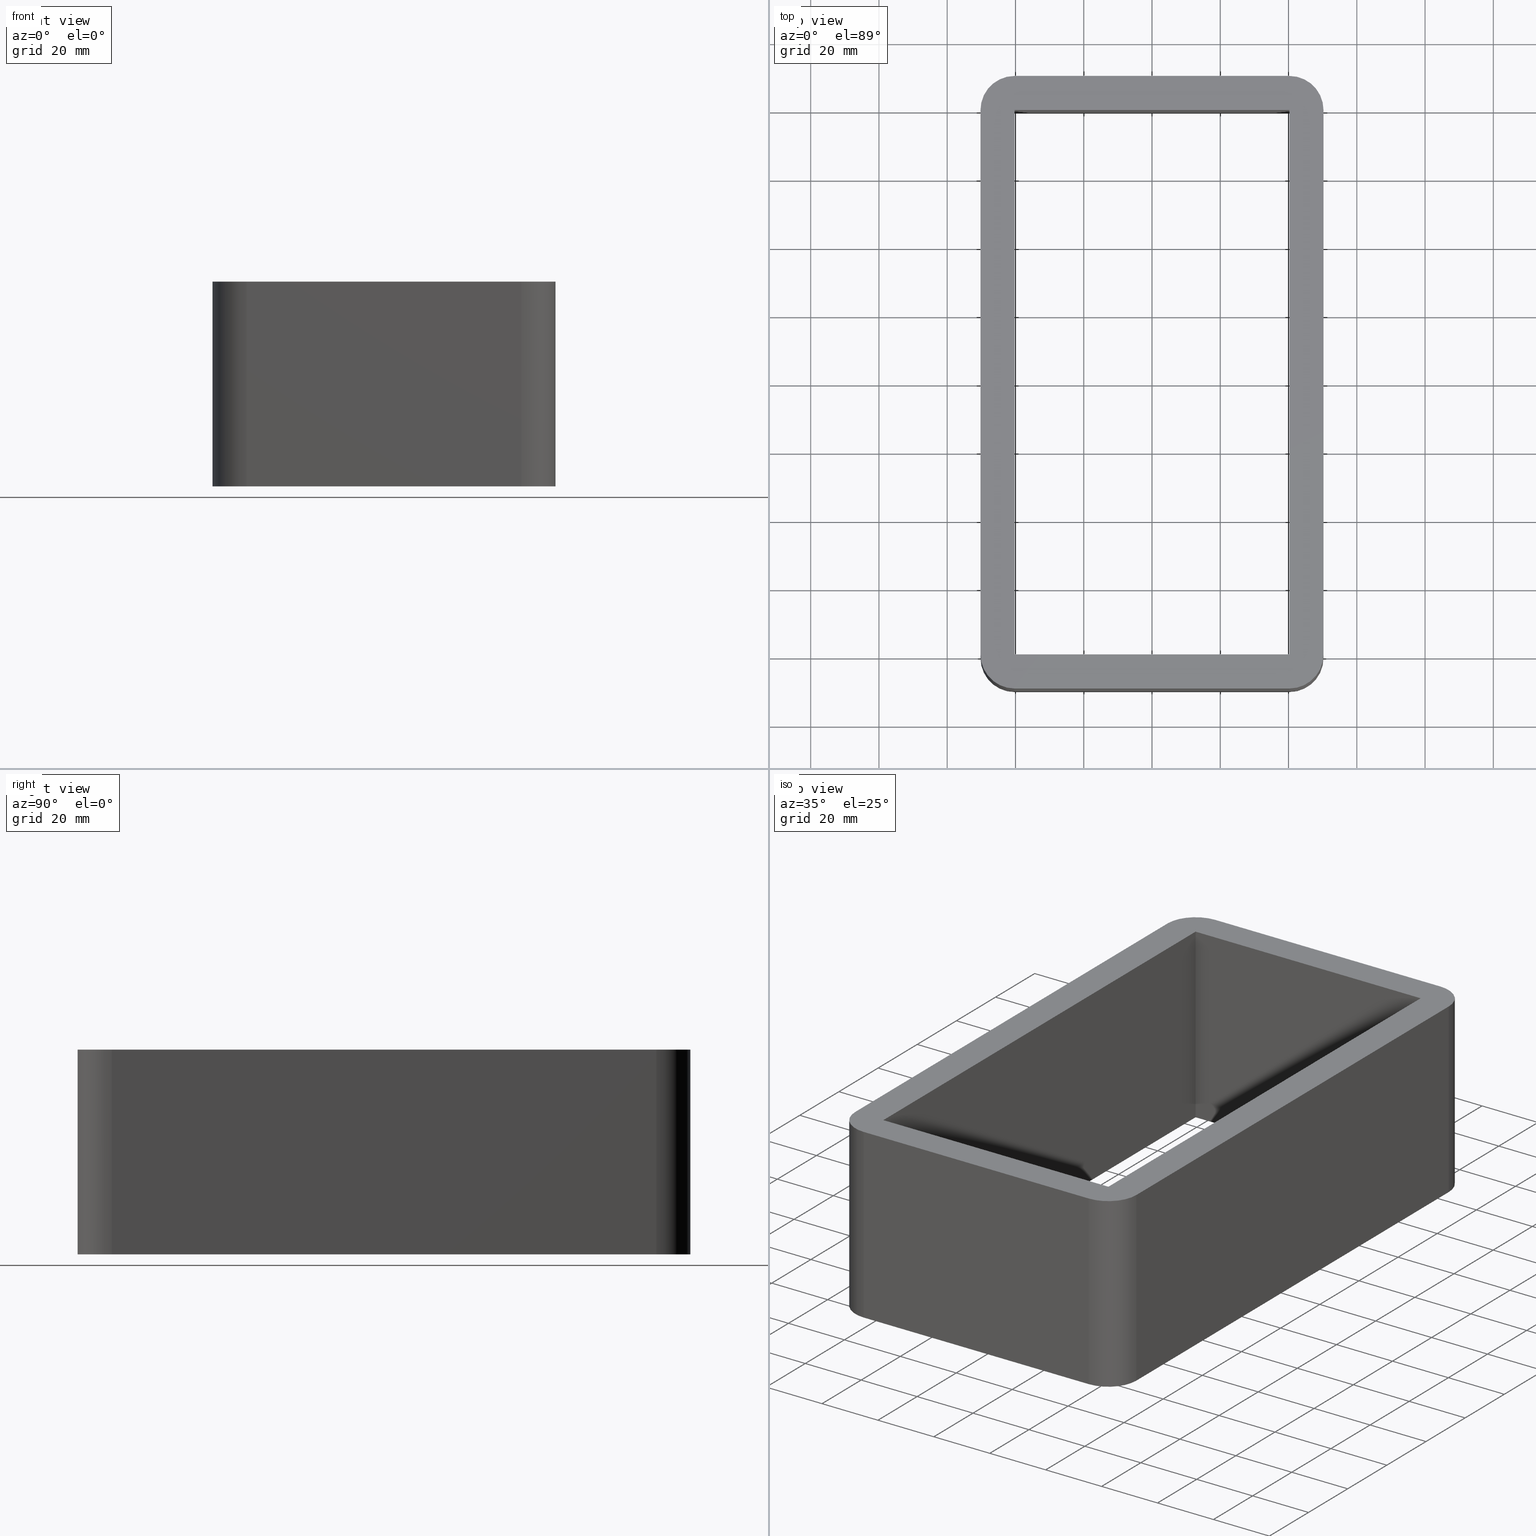
[diagram: canonical four-view strip — front | top / right | iso, engineering-drawing reading convention]
A machine part, canonical four-view strip (front | top / right | iso — engineering-drawing reading convention). The complete STEP part file that produces these views, byte-faithful:
ISO-10303-21;
HEADER;
/* Generated by software containing ST-Developer
 * from STEP Tools, Inc. (www.steptools.com) 
 */

FILE_DESCRIPTION(
/* description */ (''),
/* implementation_level */ '2;1');

FILE_NAME(
/* name */ 
'C:\\Users\\se-milkar\\OneDrive - Roxtec international AB\\Desktop\\S 
80\\Step\\S804X1.stp',
/* time_stamp */ '2024-09-03T15:05:58+02:00',
/* author */ ('ENTER YOUR USERNAME'),
/* organization */ (''),
/* preprocessor_version */ 'ST-DEVELOPER v18.1',
/* originating_system */ 'Autodesk Inventor 2021',
/* authorisation */ '');

FILE_SCHEMA (('AUTOMOTIVE_DESIGN { 1 0 10303 214 3 1 1 }'));
ENDSEC;

DATA;
#10=MECHANICAL_DESIGN_GEOMETRIC_PRESENTATION_REPRESENTATION('',(#13),#465);
#11=SHAPE_REPRESENTATION_RELATIONSHIP('SRR','None',#472,#12);
#12=ADVANCED_BREP_SHAPE_REPRESENTATION('',(#14),#464);
#13=STYLED_ITEM('',(#481),#14);
#14=MANIFOLD_SOLID_BREP('Solid1',#271);
#15=FACE_BOUND('',#50,.T.);
#16=FACE_BOUND('',#58,.T.);
#17=CIRCLE('',#296,10.);
#18=CIRCLE('',#297,10.);
#19=CIRCLE('',#300,10.);
#20=CIRCLE('',#301,10.);
#21=CIRCLE('',#302,10.);
#22=CIRCLE('',#304,10.);
#23=CIRCLE('',#307,10.);
#24=CIRCLE('',#310,10.);
#25=CYLINDRICAL_SURFACE('',#295,10.);
#26=CYLINDRICAL_SURFACE('',#303,10.);
#27=CYLINDRICAL_SURFACE('',#306,10.);
#28=CYLINDRICAL_SURFACE('',#309,10.);
#29=FACE_OUTER_BOUND('',#43,.T.);
#30=FACE_OUTER_BOUND('',#44,.T.);
#31=FACE_OUTER_BOUND('',#45,.T.);
#32=FACE_OUTER_BOUND('',#46,.T.);
#33=FACE_OUTER_BOUND('',#47,.T.);
#34=FACE_OUTER_BOUND('',#48,.T.);
#35=FACE_OUTER_BOUND('',#49,.T.);
#36=FACE_OUTER_BOUND('',#51,.T.);
#37=FACE_OUTER_BOUND('',#52,.T.);
#38=FACE_OUTER_BOUND('',#53,.T.);
#39=FACE_OUTER_BOUND('',#54,.T.);
#40=FACE_OUTER_BOUND('',#55,.T.);
#41=FACE_OUTER_BOUND('',#56,.T.);
#42=FACE_OUTER_BOUND('',#57,.T.);
#43=EDGE_LOOP('',(#175,#176,#177,#178));
#44=EDGE_LOOP('',(#179,#180,#181,#182));
#45=EDGE_LOOP('',(#183,#184,#185,#186));
#46=EDGE_LOOP('',(#187,#188,#189,#190));
#47=EDGE_LOOP('',(#191,#192,#193,#194));
#48=EDGE_LOOP('',(#195,#196,#197,#198));
#49=EDGE_LOOP('',(#199,#200,#201,#202,#203,#204,#205,#206));
#50=EDGE_LOOP('',(#207,#208,#209,#210));
#51=EDGE_LOOP('',(#211,#212,#213,#214));
#52=EDGE_LOOP('',(#215,#216,#217,#218));
#53=EDGE_LOOP('',(#219,#220,#221,#222));
#54=EDGE_LOOP('',(#223,#224,#225,#226));
#55=EDGE_LOOP('',(#227,#228,#229,#230));
#56=EDGE_LOOP('',(#231,#232,#233,#234));
#57=EDGE_LOOP('',(#235,#236,#237,#238,#239,#240,#241,#242));
#58=EDGE_LOOP('',(#243,#244,#245,#246));
#59=LINE('',#391,#87);
#60=LINE('',#393,#88);
#61=LINE('',#395,#89);
#62=LINE('',#396,#90);
#63=LINE('',#399,#91);
#64=LINE('',#401,#92);
#65=LINE('',#402,#93);
#66=LINE('',#405,#94);
#67=LINE('',#407,#95);
#68=LINE('',#408,#96);
#69=LINE('',#410,#97);
#70=LINE('',#411,#98);
#71=LINE('',#417,#99);
#72=LINE('',#420,#100);
#73=LINE('',#423,#101);
#74=LINE('',#425,#102);
#75=LINE('',#426,#103);
#76=LINE('',#429,#104);
#77=LINE('',#433,#105);
#78=LINE('',#437,#106);
#79=LINE('',#441,#107);
#80=LINE('',#445,#108);
#81=LINE('',#446,#109);
#82=LINE('',#449,#110);
#83=LINE('',#453,#111);
#84=LINE('',#454,#112);
#85=LINE('',#457,#113);
#86=LINE('',#460,#114);
#87=VECTOR('',#317,10.);
#88=VECTOR('',#318,10.);
#89=VECTOR('',#319,10.);
#90=VECTOR('',#320,10.);
#91=VECTOR('',#323,10.);
#92=VECTOR('',#324,10.);
#93=VECTOR('',#325,10.);
#94=VECTOR('',#328,10.);
#95=VECTOR('',#329,10.);
#96=VECTOR('',#330,10.);
#97=VECTOR('',#333,10.);
#98=VECTOR('',#334,10.);
#99=VECTOR('',#339,10.);
#100=VECTOR('',#342,10.);
#101=VECTOR('',#345,10.);
#102=VECTOR('',#346,10.);
#103=VECTOR('',#347,10.);
#104=VECTOR('',#350,10.);
#105=VECTOR('',#353,10.);
#106=VECTOR('',#356,10.);
#107=VECTOR('',#361,10.);
#108=VECTOR('',#366,10.);
#109=VECTOR('',#367,10.);
#110=VECTOR('',#370,10.);
#111=VECTOR('',#375,10.);
#112=VECTOR('',#376,10.);
#113=VECTOR('',#379,10.);
#114=VECTOR('',#384,10.);
#115=VERTEX_POINT('',#389);
#116=VERTEX_POINT('',#390);
#117=VERTEX_POINT('',#392);
#118=VERTEX_POINT('',#394);
#119=VERTEX_POINT('',#398);
#120=VERTEX_POINT('',#400);
#121=VERTEX_POINT('',#404);
#122=VERTEX_POINT('',#406);
#123=VERTEX_POINT('',#413);
#124=VERTEX_POINT('',#414);
#125=VERTEX_POINT('',#416);
#126=VERTEX_POINT('',#418);
#127=VERTEX_POINT('',#422);
#128=VERTEX_POINT('',#424);
#129=VERTEX_POINT('',#428);
#130=VERTEX_POINT('',#430);
#131=VERTEX_POINT('',#432);
#132=VERTEX_POINT('',#434);
#133=VERTEX_POINT('',#436);
#134=VERTEX_POINT('',#440);
#135=VERTEX_POINT('',#444);
#136=VERTEX_POINT('',#448);
#137=VERTEX_POINT('',#452);
#138=VERTEX_POINT('',#456);
#139=EDGE_CURVE('',#115,#116,#59,.T.);
#140=EDGE_CURVE('',#117,#115,#60,.T.);
#141=EDGE_CURVE('',#118,#117,#61,.T.);
#142=EDGE_CURVE('',#118,#116,#62,.T.);
#143=EDGE_CURVE('',#116,#119,#63,.T.);
#144=EDGE_CURVE('',#120,#118,#64,.T.);
#145=EDGE_CURVE('',#120,#119,#65,.T.);
#146=EDGE_CURVE('',#119,#121,#66,.T.);
#147=EDGE_CURVE('',#122,#120,#67,.T.);
#148=EDGE_CURVE('',#122,#121,#68,.T.);
#149=EDGE_CURVE('',#121,#115,#69,.T.);
#150=EDGE_CURVE('',#117,#122,#70,.T.);
#151=EDGE_CURVE('',#123,#124,#17,.T.);
#152=EDGE_CURVE('',#124,#125,#71,.T.);
#153=EDGE_CURVE('',#125,#126,#18,.T.);
#154=EDGE_CURVE('',#126,#123,#72,.T.);
#155=EDGE_CURVE('',#127,#124,#73,.T.);
#156=EDGE_CURVE('',#128,#127,#74,.T.);
#157=EDGE_CURVE('',#125,#128,#75,.T.);
#158=EDGE_CURVE('',#123,#129,#76,.T.);
#159=EDGE_CURVE('',#130,#129,#19,.T.);
#160=EDGE_CURVE('',#130,#131,#77,.T.);
#161=EDGE_CURVE('',#132,#131,#20,.T.);
#162=EDGE_CURVE('',#132,#133,#78,.T.);
#163=EDGE_CURVE('',#127,#133,#21,.T.);
#164=EDGE_CURVE('',#133,#134,#79,.T.);
#165=EDGE_CURVE('',#134,#128,#22,.T.);
#166=EDGE_CURVE('',#135,#132,#80,.T.);
#167=EDGE_CURVE('',#134,#135,#81,.T.);
#168=EDGE_CURVE('',#131,#136,#82,.T.);
#169=EDGE_CURVE('',#136,#135,#23,.T.);
#170=EDGE_CURVE('',#137,#130,#83,.T.);
#171=EDGE_CURVE('',#136,#137,#84,.T.);
#172=EDGE_CURVE('',#129,#138,#85,.T.);
#173=EDGE_CURVE('',#138,#137,#24,.T.);
#174=EDGE_CURVE('',#138,#126,#86,.T.);
#175=ORIENTED_EDGE('',*,*,#139,.F.);
#176=ORIENTED_EDGE('',*,*,#140,.F.);
#177=ORIENTED_EDGE('',*,*,#141,.F.);
#178=ORIENTED_EDGE('',*,*,#142,.T.);
#179=ORIENTED_EDGE('',*,*,#143,.F.);
#180=ORIENTED_EDGE('',*,*,#142,.F.);
#181=ORIENTED_EDGE('',*,*,#144,.F.);
#182=ORIENTED_EDGE('',*,*,#145,.T.);
#183=ORIENTED_EDGE('',*,*,#146,.F.);
#184=ORIENTED_EDGE('',*,*,#145,.F.);
#185=ORIENTED_EDGE('',*,*,#147,.F.);
#186=ORIENTED_EDGE('',*,*,#148,.T.);
#187=ORIENTED_EDGE('',*,*,#149,.F.);
#188=ORIENTED_EDGE('',*,*,#148,.F.);
#189=ORIENTED_EDGE('',*,*,#150,.F.);
#190=ORIENTED_EDGE('',*,*,#140,.T.);
#191=ORIENTED_EDGE('',*,*,#151,.T.);
#192=ORIENTED_EDGE('',*,*,#152,.T.);
#193=ORIENTED_EDGE('',*,*,#153,.T.);
#194=ORIENTED_EDGE('',*,*,#154,.T.);
#195=ORIENTED_EDGE('',*,*,#152,.F.);
#196=ORIENTED_EDGE('',*,*,#155,.F.);
#197=ORIENTED_EDGE('',*,*,#156,.F.);
#198=ORIENTED_EDGE('',*,*,#157,.F.);
#199=ORIENTED_EDGE('',*,*,#151,.F.);
#200=ORIENTED_EDGE('',*,*,#158,.T.);
#201=ORIENTED_EDGE('',*,*,#159,.F.);
#202=ORIENTED_EDGE('',*,*,#160,.T.);
#203=ORIENTED_EDGE('',*,*,#161,.F.);
#204=ORIENTED_EDGE('',*,*,#162,.T.);
#205=ORIENTED_EDGE('',*,*,#163,.F.);
#206=ORIENTED_EDGE('',*,*,#155,.T.);
#207=ORIENTED_EDGE('',*,*,#146,.T.);
#208=ORIENTED_EDGE('',*,*,#149,.T.);
#209=ORIENTED_EDGE('',*,*,#139,.T.);
#210=ORIENTED_EDGE('',*,*,#143,.T.);
#211=ORIENTED_EDGE('',*,*,#163,.T.);
#212=ORIENTED_EDGE('',*,*,#164,.T.);
#213=ORIENTED_EDGE('',*,*,#165,.T.);
#214=ORIENTED_EDGE('',*,*,#156,.T.);
#215=ORIENTED_EDGE('',*,*,#164,.F.);
#216=ORIENTED_EDGE('',*,*,#162,.F.);
#217=ORIENTED_EDGE('',*,*,#166,.F.);
#218=ORIENTED_EDGE('',*,*,#167,.F.);
#219=ORIENTED_EDGE('',*,*,#161,.T.);
#220=ORIENTED_EDGE('',*,*,#168,.T.);
#221=ORIENTED_EDGE('',*,*,#169,.T.);
#222=ORIENTED_EDGE('',*,*,#166,.T.);
#223=ORIENTED_EDGE('',*,*,#168,.F.);
#224=ORIENTED_EDGE('',*,*,#160,.F.);
#225=ORIENTED_EDGE('',*,*,#170,.F.);
#226=ORIENTED_EDGE('',*,*,#171,.F.);
#227=ORIENTED_EDGE('',*,*,#159,.T.);
#228=ORIENTED_EDGE('',*,*,#172,.T.);
#229=ORIENTED_EDGE('',*,*,#173,.T.);
#230=ORIENTED_EDGE('',*,*,#170,.T.);
#231=ORIENTED_EDGE('',*,*,#154,.F.);
#232=ORIENTED_EDGE('',*,*,#174,.F.);
#233=ORIENTED_EDGE('',*,*,#172,.F.);
#234=ORIENTED_EDGE('',*,*,#158,.F.);
#235=ORIENTED_EDGE('',*,*,#153,.F.);
#236=ORIENTED_EDGE('',*,*,#157,.T.);
#237=ORIENTED_EDGE('',*,*,#165,.F.);
#238=ORIENTED_EDGE('',*,*,#167,.T.);
#239=ORIENTED_EDGE('',*,*,#169,.F.);
#240=ORIENTED_EDGE('',*,*,#171,.T.);
#241=ORIENTED_EDGE('',*,*,#173,.F.);
#242=ORIENTED_EDGE('',*,*,#174,.T.);
#243=ORIENTED_EDGE('',*,*,#147,.T.);
#244=ORIENTED_EDGE('',*,*,#144,.T.);
#245=ORIENTED_EDGE('',*,*,#141,.T.);
#246=ORIENTED_EDGE('',*,*,#150,.T.);
#247=PLANE('',#291);
#248=PLANE('',#292);
#249=PLANE('',#293);
#250=PLANE('',#294);
#251=PLANE('',#298);
#252=PLANE('',#299);
#253=PLANE('',#305);
#254=PLANE('',#308);
#255=PLANE('',#311);
#256=PLANE('',#312);
#257=ADVANCED_FACE('',(#29),#247,.F.);
#258=ADVANCED_FACE('',(#30),#248,.F.);
#259=ADVANCED_FACE('',(#31),#249,.F.);
#260=ADVANCED_FACE('',(#32),#250,.F.);
#261=ADVANCED_FACE('',(#33),#25,.T.);
#262=ADVANCED_FACE('',(#34),#251,.T.);
#263=ADVANCED_FACE('',(#35,#15),#252,.T.);
#264=ADVANCED_FACE('',(#36),#26,.T.);
#265=ADVANCED_FACE('',(#37),#253,.T.);
#266=ADVANCED_FACE('',(#38),#27,.T.);
#267=ADVANCED_FACE('',(#39),#254,.T.);
#268=ADVANCED_FACE('',(#40),#28,.T.);
#269=ADVANCED_FACE('',(#41),#255,.T.);
#270=ADVANCED_FACE('',(#42,#16),#256,.T.);
#271=CLOSED_SHELL('',(#257,#258,#259,#260,#261,#262,#263,#264,#265,#266,
#267,#268,#269,#270));
#272=DERIVED_UNIT_ELEMENT(#274,1.);
#273=DERIVED_UNIT_ELEMENT(#467,-3.);
#274=(
MASS_UNIT()
NAMED_UNIT(*)
SI_UNIT($,.GRAM.)
);
#275=DERIVED_UNIT((#272,#273));
#276=MEASURE_REPRESENTATION_ITEM('density measure',
POSITIVE_RATIO_MEASURE(1.),#275);
#277=PROPERTY_DEFINITION_REPRESENTATION(#282,#279);
#278=PROPERTY_DEFINITION_REPRESENTATION(#283,#280);
#279=REPRESENTATION('material name',(#281),#464);
#280=REPRESENTATION('density',(#276),#464);
#281=DESCRIPTIVE_REPRESENTATION_ITEM('Generic','Generic');
#282=PROPERTY_DEFINITION('material property','material name',#474);
#283=PROPERTY_DEFINITION('material property','density of part',#474);
#284=DATE_TIME_ROLE('creation_date');
#285=APPLIED_DATE_AND_TIME_ASSIGNMENT(#286,#284,(#474));
#286=DATE_AND_TIME(#287,#288);
#287=CALENDAR_DATE(2022,17,2);
#288=LOCAL_TIME(0,0,0.,#289);
#289=COORDINATED_UNIVERSAL_TIME_OFFSET(0,0,.BEHIND.);
#290=AXIS2_PLACEMENT_3D('placement',#387,#313,#314);
#291=AXIS2_PLACEMENT_3D('',#388,#315,#316);
#292=AXIS2_PLACEMENT_3D('',#397,#321,#322);
#293=AXIS2_PLACEMENT_3D('',#403,#326,#327);
#294=AXIS2_PLACEMENT_3D('',#409,#331,#332);
#295=AXIS2_PLACEMENT_3D('',#412,#335,#336);
#296=AXIS2_PLACEMENT_3D('',#415,#337,#338);
#297=AXIS2_PLACEMENT_3D('',#419,#340,#341);
#298=AXIS2_PLACEMENT_3D('',#421,#343,#344);
#299=AXIS2_PLACEMENT_3D('',#427,#348,#349);
#300=AXIS2_PLACEMENT_3D('',#431,#351,#352);
#301=AXIS2_PLACEMENT_3D('',#435,#354,#355);
#302=AXIS2_PLACEMENT_3D('',#438,#357,#358);
#303=AXIS2_PLACEMENT_3D('',#439,#359,#360);
#304=AXIS2_PLACEMENT_3D('',#442,#362,#363);
#305=AXIS2_PLACEMENT_3D('',#443,#364,#365);
#306=AXIS2_PLACEMENT_3D('',#447,#368,#369);
#307=AXIS2_PLACEMENT_3D('',#450,#371,#372);
#308=AXIS2_PLACEMENT_3D('',#451,#373,#374);
#309=AXIS2_PLACEMENT_3D('',#455,#377,#378);
#310=AXIS2_PLACEMENT_3D('',#458,#380,#381);
#311=AXIS2_PLACEMENT_3D('',#459,#382,#383);
#312=AXIS2_PLACEMENT_3D('',#461,#385,#386);
#313=DIRECTION('axis',(0.,0.,1.));
#314=DIRECTION('refdir',(1.,0.,0.));
#315=DIRECTION('center_axis',(1.,5.56851673793182E-17,0.));
#316=DIRECTION('ref_axis',(5.56851673793182E-17,-1.,0.));
#317=DIRECTION('',(-5.56851673793182E-17,1.,0.));
#318=DIRECTION('',(0.,0.,-1.));
#319=DIRECTION('',(5.56851673793182E-17,-1.,0.));
#320=DIRECTION('',(0.,0.,-1.));
#321=DIRECTION('center_axis',(0.,1.,0.));
#322=DIRECTION('ref_axis',(1.,0.,0.));
#323=DIRECTION('',(-1.,0.,0.));
#324=DIRECTION('',(1.,0.,0.));
#325=DIRECTION('',(0.,0.,-1.));
#326=DIRECTION('center_axis',(-1.,-2.01023454239339E-14,0.));
#327=DIRECTION('ref_axis',(-2.01023454239339E-14,1.,0.));
#328=DIRECTION('',(2.01023454239339E-14,-1.,0.));
#329=DIRECTION('',(-2.01023454239339E-14,1.,0.));
#330=DIRECTION('',(0.,0.,-1.));
#331=DIRECTION('center_axis',(4.4133089177646E-16,-1.,0.));
#332=DIRECTION('ref_axis',(-1.,-4.4133089177646E-16,0.));
#333=DIRECTION('',(1.,4.4133089177646E-16,0.));
#334=DIRECTION('',(-1.,-4.4133089177646E-16,0.));
#335=DIRECTION('center_axis',(0.,0.,-1.));
#336=DIRECTION('ref_axis',(0.707106781186547,0.707106781186547,0.));
#337=DIRECTION('center_axis',(0.,0.,1.));
#338=DIRECTION('ref_axis',(0.707106781186547,0.707106781186547,0.));
#339=DIRECTION('',(0.,0.,1.));
#340=DIRECTION('center_axis',(0.,0.,-1.));
#341=DIRECTION('ref_axis',(0.707106781186547,0.707106781186547,0.));
#342=DIRECTION('',(0.,0.,-1.));
#343=DIRECTION('center_axis',(0.,1.,0.));
#344=DIRECTION('ref_axis',(1.,0.,0.));
#345=DIRECTION('',(1.,0.,0.));
#346=DIRECTION('',(0.,0.,-1.));
#347=DIRECTION('',(-1.,0.,0.));
#348=DIRECTION('center_axis',(0.,0.,-1.));
#349=DIRECTION('ref_axis',(-1.,0.,0.));
#350=DIRECTION('',(0.,-1.,0.));
#351=DIRECTION('center_axis',(0.,0.,1.));
#352=DIRECTION('ref_axis',(0.707106781186547,-0.707106781186547,0.));
#353=DIRECTION('',(-1.,0.,0.));
#354=DIRECTION('center_axis',(0.,0.,1.));
#355=DIRECTION('ref_axis',(-0.707106781186547,-0.707106781186547,0.));
#356=DIRECTION('',(0.,1.,0.));
#357=DIRECTION('center_axis',(0.,0.,1.));
#358=DIRECTION('ref_axis',(-0.707106781186547,0.707106781186547,0.));
#359=DIRECTION('center_axis',(0.,0.,-1.));
#360=DIRECTION('ref_axis',(-0.707106781186547,0.707106781186547,0.));
#361=DIRECTION('',(0.,0.,1.));
#362=DIRECTION('center_axis',(0.,0.,-1.));
#363=DIRECTION('ref_axis',(-0.707106781186547,0.707106781186547,0.));
#364=DIRECTION('center_axis',(-1.,0.,0.));
#365=DIRECTION('ref_axis',(0.,1.,0.));
#366=DIRECTION('',(0.,0.,-1.));
#367=DIRECTION('',(0.,-1.,0.));
#368=DIRECTION('center_axis',(0.,0.,-1.));
#369=DIRECTION('ref_axis',(-0.707106781186547,-0.707106781186547,0.));
#370=DIRECTION('',(0.,0.,1.));
#371=DIRECTION('center_axis',(0.,0.,-1.));
#372=DIRECTION('ref_axis',(-0.707106781186547,-0.707106781186547,0.));
#373=DIRECTION('center_axis',(0.,-1.,0.));
#374=DIRECTION('ref_axis',(-1.,0.,0.));
#375=DIRECTION('',(0.,0.,-1.));
#376=DIRECTION('',(1.,0.,0.));
#377=DIRECTION('center_axis',(0.,0.,-1.));
#378=DIRECTION('ref_axis',(0.707106781186547,-0.707106781186547,0.));
#379=DIRECTION('',(0.,0.,1.));
#380=DIRECTION('center_axis',(0.,0.,-1.));
#381=DIRECTION('ref_axis',(0.707106781186547,-0.707106781186547,0.));
#382=DIRECTION('center_axis',(1.,0.,0.));
#383=DIRECTION('ref_axis',(0.,-1.,0.));
#384=DIRECTION('',(0.,1.,0.));
#385=DIRECTION('center_axis',(0.,0.,1.));
#386=DIRECTION('ref_axis',(1.,0.,0.));
#387=CARTESIAN_POINT('',(0.,0.,0.));
#388=CARTESIAN_POINT('Origin',(40.2500000000036,79.7499999999909,0.));
#389=CARTESIAN_POINT('',(40.2500000000036,-79.750000000009,-60.));
#390=CARTESIAN_POINT('',(40.2500000000036,79.7499999999909,-60.));
#391=CARTESIAN_POINT('',(40.2500000000036,39.8749999999955,-60.));
#392=CARTESIAN_POINT('',(40.2500000000036,-79.750000000009,0.));
#393=CARTESIAN_POINT('',(40.2500000000036,-79.750000000009,0.));
#394=CARTESIAN_POINT('',(40.2500000000036,79.7499999999909,0.));
#395=CARTESIAN_POINT('',(40.2500000000036,39.8749999999955,0.));
#396=CARTESIAN_POINT('',(40.2500000000036,79.7499999999909,0.));
#397=CARTESIAN_POINT('Origin',(-40.2499999999996,79.7499999999909,0.));
#398=CARTESIAN_POINT('',(-40.2499999999996,79.7499999999909,-60.));
#399=CARTESIAN_POINT('',(-20.1249999999997,79.7499999999909,-60.));
#400=CARTESIAN_POINT('',(-40.2499999999996,79.7499999999909,0.));
#401=CARTESIAN_POINT('',(-20.1249999999997,79.7499999999909,0.));
#402=CARTESIAN_POINT('',(-40.2499999999996,79.7499999999909,0.));
#403=CARTESIAN_POINT('Origin',(-40.2499999999964,-79.7500000000091,0.));
#404=CARTESIAN_POINT('',(-40.2499999999964,-79.7500000000091,-60.));
#405=CARTESIAN_POINT('',(-40.2499999999972,-39.8750000000049,-60.));
#406=CARTESIAN_POINT('',(-40.2499999999964,-79.7500000000091,0.));
#407=CARTESIAN_POINT('',(-40.2499999999972,-39.8750000000049,0.));
#408=CARTESIAN_POINT('',(-40.2499999999964,-79.7500000000091,0.));
#409=CARTESIAN_POINT('Origin',(40.2500000000036,-79.750000000009,0.));
#410=CARTESIAN_POINT('',(20.1250000000019,-79.7500000000091,-60.));
#411=CARTESIAN_POINT('',(20.1250000000019,-79.7500000000091,0.));
#412=CARTESIAN_POINT('Origin',(40.2500000000001,79.7500000000002,0.));
#413=CARTESIAN_POINT('',(50.2500000000001,79.7500000000002,-60.));
#414=CARTESIAN_POINT('',(40.2500000000001,89.7500000000002,-60.));
#415=CARTESIAN_POINT('Origin',(40.2500000000001,79.7500000000002,-60.));
#416=CARTESIAN_POINT('',(40.2500000000001,89.7500000000002,0.));
#417=CARTESIAN_POINT('',(40.2500000000001,89.7500000000002,0.));
#418=CARTESIAN_POINT('',(50.2500000000001,79.7500000000002,0.));
#419=CARTESIAN_POINT('Origin',(40.2500000000001,79.7500000000002,0.));
#420=CARTESIAN_POINT('',(50.2500000000001,79.7500000000002,0.));
#421=CARTESIAN_POINT('Origin',(-50.2499999999998,89.7500000000002,0.));
#422=CARTESIAN_POINT('',(-40.2499999999998,89.7500000000002,-60.));
#423=CARTESIAN_POINT('',(50.2500000000001,89.7500000000002,-60.));
#424=CARTESIAN_POINT('',(-40.2499999999998,89.7500000000002,0.));
#425=CARTESIAN_POINT('',(-40.2499999999998,89.7500000000002,0.));
#426=CARTESIAN_POINT('',(50.2500000000001,89.7500000000002,0.));
#427=CARTESIAN_POINT('Origin',(1.4210854715202E-13,1.4210854715202E-13,
-60.));
#428=CARTESIAN_POINT('',(50.2500000000001,-79.7499999999999,-60.));
#429=CARTESIAN_POINT('',(50.2500000000001,-89.7499999999999,-60.));
#430=CARTESIAN_POINT('',(40.2500000000001,-89.7499999999999,-60.));
#431=CARTESIAN_POINT('Origin',(40.2500000000001,-79.7499999999999,-60.));
#432=CARTESIAN_POINT('',(-40.2499999999998,-89.7499999999999,-60.));
#433=CARTESIAN_POINT('',(-50.2499999999998,-89.7499999999999,-60.));
#434=CARTESIAN_POINT('',(-50.2499999999998,-79.7499999999999,-60.));
#435=CARTESIAN_POINT('Origin',(-40.2499999999998,-79.7499999999999,-60.));
#436=CARTESIAN_POINT('',(-50.2499999999998,79.7500000000002,-60.));
#437=CARTESIAN_POINT('',(-50.2499999999998,89.7500000000002,-60.));
#438=CARTESIAN_POINT('Origin',(-40.2499999999998,79.7500000000002,-60.));
#439=CARTESIAN_POINT('Origin',(-40.2499999999998,79.7500000000002,0.));
#440=CARTESIAN_POINT('',(-50.2499999999998,79.7500000000002,0.));
#441=CARTESIAN_POINT('',(-50.2499999999998,79.7500000000002,0.));
#442=CARTESIAN_POINT('Origin',(-40.2499999999998,79.7500000000002,0.));
#443=CARTESIAN_POINT('Origin',(-50.2499999999998,-89.7499999999999,0.));
#444=CARTESIAN_POINT('',(-50.2499999999998,-79.7499999999999,0.));
#445=CARTESIAN_POINT('',(-50.2499999999998,-79.7499999999999,0.));
#446=CARTESIAN_POINT('',(-50.2499999999998,89.7500000000002,0.));
#447=CARTESIAN_POINT('Origin',(-40.2499999999998,-79.7499999999999,0.));
#448=CARTESIAN_POINT('',(-40.2499999999998,-89.7499999999999,0.));
#449=CARTESIAN_POINT('',(-40.2499999999998,-89.7499999999999,0.));
#450=CARTESIAN_POINT('Origin',(-40.2499999999998,-79.7499999999999,0.));
#451=CARTESIAN_POINT('Origin',(50.2500000000001,-89.7499999999999,0.));
#452=CARTESIAN_POINT('',(40.2500000000001,-89.7499999999999,0.));
#453=CARTESIAN_POINT('',(40.2500000000001,-89.7499999999999,0.));
#454=CARTESIAN_POINT('',(-50.2499999999998,-89.7499999999999,0.));
#455=CARTESIAN_POINT('Origin',(40.2500000000001,-79.7499999999999,0.));
#456=CARTESIAN_POINT('',(50.2500000000001,-79.7499999999999,0.));
#457=CARTESIAN_POINT('',(50.2500000000001,-79.7499999999999,0.));
#458=CARTESIAN_POINT('Origin',(40.2500000000001,-79.7499999999999,0.));
#459=CARTESIAN_POINT('Origin',(50.2500000000001,89.7500000000002,0.));
#460=CARTESIAN_POINT('',(50.2500000000001,-89.7499999999999,0.));
#461=CARTESIAN_POINT('Origin',(1.40839720838163E-13,1.40712838206777E-13,
0.));
#462=UNCERTAINTY_MEASURE_WITH_UNIT(LENGTH_MEASURE(0.01),#466,
'DISTANCE_ACCURACY_VALUE',
'Maximum model space distance between geometric entities at asserted c
onnectivities');
#463=UNCERTAINTY_MEASURE_WITH_UNIT(LENGTH_MEASURE(0.01),#466,
'DISTANCE_ACCURACY_VALUE',
'Maximum model space distance between geometric entities at asserted c
onnectivities');
#464=(
GEOMETRIC_REPRESENTATION_CONTEXT(3)
GLOBAL_UNCERTAINTY_ASSIGNED_CONTEXT((#462))
GLOBAL_UNIT_ASSIGNED_CONTEXT((#466,#468,#469))
REPRESENTATION_CONTEXT('','3D')
);
#465=(
GEOMETRIC_REPRESENTATION_CONTEXT(3)
GLOBAL_UNCERTAINTY_ASSIGNED_CONTEXT((#463))
GLOBAL_UNIT_ASSIGNED_CONTEXT((#466,#468,#469))
REPRESENTATION_CONTEXT('','3D')
);
#466=(
LENGTH_UNIT()
NAMED_UNIT(*)
SI_UNIT(.MILLI.,.METRE.)
);
#467=(
LENGTH_UNIT()
NAMED_UNIT(*)
SI_UNIT(.CENTI.,.METRE.)
);
#468=(
NAMED_UNIT(*)
PLANE_ANGLE_UNIT()
SI_UNIT($,.RADIAN.)
);
#469=(
NAMED_UNIT(*)
SI_UNIT($,.STERADIAN.)
SOLID_ANGLE_UNIT()
);
#470=SHAPE_DEFINITION_REPRESENTATION(#471,#472);
#471=PRODUCT_DEFINITION_SHAPE('',$,#474);
#472=SHAPE_REPRESENTATION('',(#290),#464);
#473=PRODUCT_DEFINITION_CONTEXT('part definition',#478,'design');
#474=PRODUCT_DEFINITION('S804X1','S Frame T10 80_Wide_Small range',#475,
#473);
#475=PRODUCT_DEFINITION_FORMATION('',$,#480);
#476=PRODUCT_RELATED_PRODUCT_CATEGORY('S Frame T10 80_Wide_Small range',
'S Frame T10 80_Wide_Small range',(#480));
#477=APPLICATION_PROTOCOL_DEFINITION('international standard',
'automotive_design',2009,#478);
#478=APPLICATION_CONTEXT(
'Core Data for Automotive Mechanical Design Process');
#479=PRODUCT_CONTEXT('part definition',#478,'mechanical');
#480=PRODUCT('S804X1','S Frame T10 80_Wide_Small range',$,(#479));
#481=PRESENTATION_STYLE_ASSIGNMENT((#482));
#482=SURFACE_STYLE_USAGE(.BOTH.,#485);
#483=SURFACE_STYLE_RENDERING_WITH_PROPERTIES($,#489,(#484));
#484=SURFACE_STYLE_TRANSPARENT(0.);
#485=SURFACE_SIDE_STYLE('',(#486,#483));
#486=SURFACE_STYLE_FILL_AREA(#487);
#487=FILL_AREA_STYLE('',(#488));
#488=FILL_AREA_STYLE_COLOUR('',#489);
#489=COLOUR_RGB('',0.749019607843137,0.749019607843137,0.749019607843137);
ENDSEC;
END-ISO-10303-21;
